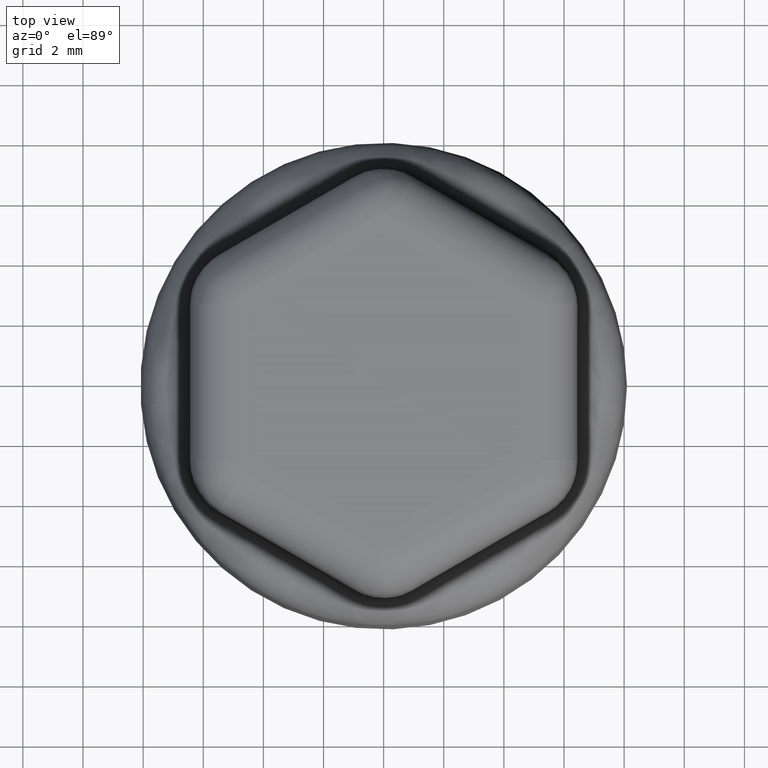
[diagram: clean part render]
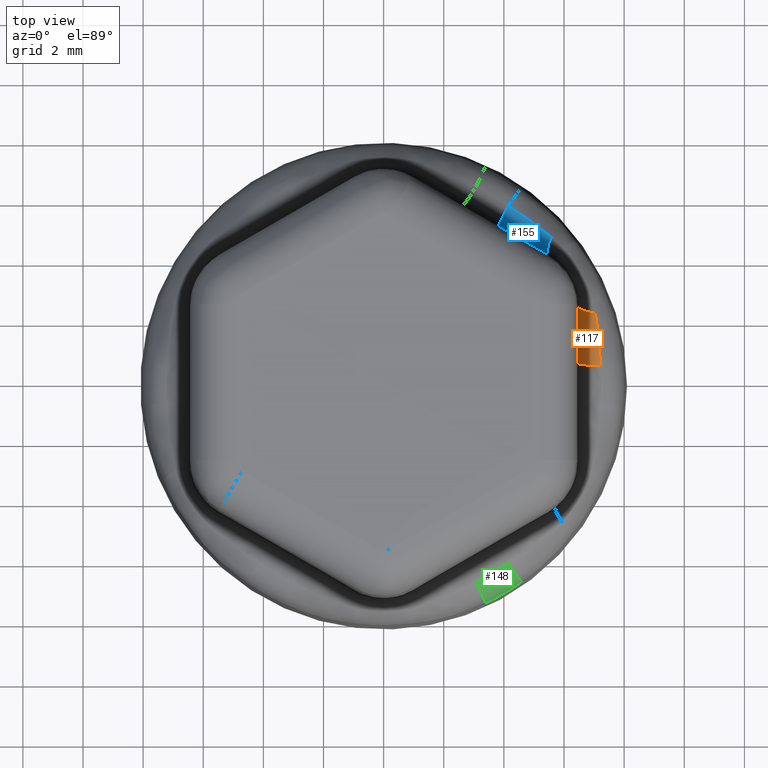
[diagram: same view with three faces highlighted in distinct colors, each labeled with its STEP entity id]
A machine part, top view with three faces highlighted in distinct colors.
Their STEP definitions:

[orange] entity #117 — the highlighted face is a freeform B-spline surface patch.
#117 = ADVANCED_FACE( '', ( #292 ), #293, .F. );
#292 = FACE_OUTER_BOUND( '', #1848, .T. );
#293 = ( B_SPLINE_SURFACE( 3, 2, ( ( #1850, #1851, #1852 ), ( #1853, #1854, #1855 ), ( #1856, #1857, #1858 ), ( #1859, #1860, #1861 ), ( #1862, #1863, #1864 ), ( #1865, #1866, #1867 ), ( #1868, #1869, #1870 ), ( #1871, #1872, #1873 ), ( #1874, #1875, #1876 ), ( #1877, #1878, #1879 ), ( #1880, #1881, #1882 ), ( #1883, #1884, #1885 ) ), .UNSPECIFIED., .F., .F., .F. )B_SPLINE_SURFACE_WITH_KNOTS( ( 4, 2, 2, 2, 2, 4 ), ( 3, 3 ), ( 0.00273812034028505, 0.00321799538146291, 0.00369787042264076, 0.00417774546381862, 0.00441768298440755, 0.00465762050499647 ), ( 0.000000000000000, 1.00000000000000 ), .UNSPECIFIED. )RATIONAL_B_SPLINE_SURFACE( ( ( 1.00000000000000, 0.868540788684804, 1.00000000000000 ), ( 1.00000000000000, 0.869626996982134, 1.00000000000000 ), ( 1.00000000000000, 0.871095905787065, 1.00000000000000 ), ( 1.00000000000000, 0.874819206004013, 1.00000000000000 ), ( 1.00000000000000, 0.877073594583361, 1.00000000000000 ), ( 1.00000000000000, 0.882396169929665, 1.00000000000000 ), ( 1.00000000000000, 0.885464692383994, 1.00000000000000 ), ( 1.00000000000000, 0.890700923210078, 1.00000000000000 ), ( 1.00000000000000, 0.892551897637465, 1.00000000000000 ), ( 1.00000000000000, 0.896467807177669, 1.00000000000000 ), ( 1.00000000000000, 0.898533363494930, 1.00000000000000 ), ( 1.00000000000000, 0.900704103057366, 1.00000000000000 ) ) )BOUNDED_SURFACE(  )REPRESENTATION_ITEM( '' )GEOMETRIC_REPRESENTATION_ITEM(  )SURFACE(  ) );
#1848 = EDGE_LOOP( '', ( #5835, #5836, #5837, #5838 ) );
#1850 = CARTESIAN_POINT( '', ( 6.45497157028330, 0.687369903874726, 4.37967701076336 ) );
#1851 = CARTESIAN_POINT( '', ( 6.46989159180715, 0.644960985334131, 3.52490955013178 ) );
#1852 = CARTESIAN_POINT( '', ( 7.21428025781307, 0.623386457222373, 3.10292781021013 ) );
#1853 = CARTESIAN_POINT( '', ( 6.45511056600844, 0.847917216718546, 4.37171395100300 ) );
#1854 = CARTESIAN_POINT( '', ( 6.46994606854181, 0.795825036931182, 3.52178858007364 ) );
#1855 = CARTESIAN_POINT( '', ( 7.20868942357169, 0.769164872809749, 3.09894631534081 ) );
#1856 = CARTESIAN_POINT( '', ( 6.45529802052555, 1.00814020784791, 4.36097468891043 ) );
#1857 = CARTESIAN_POINT( '', ( 6.47001922998623, 0.946620907635757, 3.51759716375581 ) );
#1858 = CARTESIAN_POINT( '', ( 7.20111596623594, 0.914836739092706, 3.09363153250591 ) );
#1859 = CARTESIAN_POINT( '', ( 6.45576955840183, 1.32793909275741, 4.33396030207083 ) );
#1860 = CARTESIAN_POINT( '', ( 6.47020095402935, 1.24833260808544, 3.50718620028540 ) );
#1861 = CARTESIAN_POINT( '', ( 7.18183657595185, 1.20615137132002, 3.08072530324878 ) );
#1862 = CARTESIAN_POINT( '', ( 6.45605359476077, 1.48751536574950, 4.31768786996513 ) );
#1863 = CARTESIAN_POINT( '', ( 6.47030948869475, 1.39925108482070, 3.50096825348408 ) );
#1864 = CARTESIAN_POINT( '', ( 7.17012980644683, 1.35179724620047, 3.07313298125380 ) );
#1865 = CARTESIAN_POINT( '', ( 6.45671963176135, 1.80601200213541, 4.27953063575771 ) );
#1866 = CARTESIAN_POINT( '', ( 6.47055992558435, 1.70137715564196, 3.48662073367069 ) );
#1867 = CARTESIAN_POINT( '', ( 7.14232521532970, 1.64314794227057, 3.05626565988206 ) );
#1868 = CARTESIAN_POINT( '', ( 6.45710154165786, 1.96493297310356, 4.25765103243992 ) );
#1869 = CARTESIAN_POINT( '', ( 6.47070177143394, 1.85258677509480, 3.47849439041292 ) );
#1870 = CARTESIAN_POINT( '', ( 7.12622580175267, 1.78885568546766, 3.04698957765460 ) );
#1871 = CARTESIAN_POINT( '', ( 6.45775160943407, 2.20279752541116, 4.22040867448347 ) );
#1872 = CARTESIAN_POINT( '', ( 6.47093890978424, 2.07963155802735, 3.46490874340204 ) );
#1873 = CARTESIAN_POINT( '', ( 7.09854693535384, 2.00739367866898, 3.03243529155364 ) );
#1874 = CARTESIAN_POINT( '', ( 6.45798120191919, 2.28199931731231, 4.20725532982015 ) );
#1875 = CARTESIAN_POINT( '', ( 6.47102203111101, 2.15535022082910, 3.46014672578479 ) );
#1876 = CARTESIAN_POINT( '', ( 7.08873203309258, 2.08023413592147, 3.02747913075039 ) );
#1877 = CARTESIAN_POINT( '', ( 6.45846747847817, 2.44022151221869, 4.17939656441466 ) );
#1878 = CARTESIAN_POINT( '', ( 6.47119663024470, 2.30684304767865, 3.45014394812046 ) );
#1879 = CARTESIAN_POINT( '', ( 7.06788635136021, 2.22586569227291, 3.01748557698017 ) );
#1880 = CARTESIAN_POINT( '', ( 6.45872423597085, 2.51926425761726, 4.16468693751055 ) );
#1881 = CARTESIAN_POINT( '', ( 6.47128813004794, 2.38263848574227, 3.44490192790038 ) );
#1882 = CARTESIAN_POINT( '', ( 7.05685191684469, 2.29867709526750, 3.01244686872367 ) );
#1883 = CARTESIAN_POINT( '', ( 6.45899519735940, 2.59812017812517, 4.14916356995679 ) );
#1884 = CARTESIAN_POINT( '', ( 6.47138398383981, 2.45835748737570, 3.43941046784259 ) );
#1885 = CARTESIAN_POINT( '', ( 7.04520656823759, 2.37135021411691, 3.00744526814262 ) );
#5835 = ORIENTED_EDGE( '', *, *, #6427, .F. );
#5836 = ORIENTED_EDGE( '', *, *, #6428, .F. );
#5837 = ORIENTED_EDGE( '', *, *, #6429, .F. );
#5838 = ORIENTED_EDGE( '', *, *, #6430, .F. );
#6427 = EDGE_CURVE( '', #6802, #6803, #6804, .T. );
#6428 = EDGE_CURVE( '', #6805, #6802, #6806, .T. );
#6429 = EDGE_CURVE( '', #6807, #6805, #6808, .T. );
#6430 = EDGE_CURVE( '', #6803, #6807, #6809, .T. );
#6802 = VERTEX_POINT( '', #7731 );
#6803 = VERTEX_POINT( '', #7732 );
#6804 = CIRCLE( '', #7733, 1.50000000000000 );
#6805 = VERTEX_POINT( '', #7734 );
#6806 = B_SPLINE_CURVE_WITH_KNOTS( '', 3, ( #7735, #7736, #7737, #7738, #7739, #7740, #7741, #7742, #7743, #7744 ), .UNSPECIFIED., .F., .F., ( 4, 2, 2, 2, 4 ), ( 7.40934095002374E-016, 0.000481152213710321, 0.000962304427419901, 0.00144345664112948, 0.00192460885483906 ), .UNSPECIFIED. );
#6807 = VERTEX_POINT( '', #7745 );
#6808 = CIRCLE( '', #7746, 1.50000000000000 );
#6809 = B_SPLINE_CURVE_WITH_KNOTS( '', 3, ( #7747, #7748, #7749, #7750, #7751, #7752, #7753, #7754 ), .UNSPECIFIED., .F., .F., ( 4, 2, 1, 1, 4 ), ( 3.23259564144200E-017, 0.000439678868733358, 0.000879357737466684, 0.00131903660620001, 0.00175871547493334 ), .UNSPECIFIED. );
#7731 = CARTESIAN_POINT( '', ( 6.45899519741347, 2.59812017751521, 4.14916356685927 ) );
#7732 = CARTESIAN_POINT( '', ( 7.04520656832663, 2.37135021355771, 3.00744526818155 ) );
#7733 = AXIS2_PLACEMENT_3D( '', #9568, #9569, #9570 );
#7734 = CARTESIAN_POINT( '', ( 6.45497157028332, 0.687369903874924, 4.37967701076204 ) );
#7735 = CARTESIAN_POINT( '', ( 6.45497157028350, 0.687369903874402, 4.37967701075153 ) );
#7736 = CARTESIAN_POINT( '', ( 6.45511059961678, 0.847956042404075, 4.37171202558233 ) );
#7737 = CARTESIAN_POINT( '', ( 6.45529810190633, 1.00820705914863, 4.36097002660833 ) );
#7738 = CARTESIAN_POINT( '', ( 6.45576972601721, 1.32804110552486, 4.33395069939200 ) );
#7739 = CARTESIAN_POINT( '', ( 6.45605380088855, 1.48762445974992, 4.31767606091284 ) );
#7740 = CARTESIAN_POINT( '', ( 6.45671986752397, 1.80611421167641, 4.27951712892573 ) );
#7741 = CARTESIAN_POINT( '', ( 6.45710176884905, 1.96502123463541, 4.25763801666514 ) );
#7742 = CARTESIAN_POINT( '', ( 6.45796841802829, 2.28212424258201, 4.20798771843947 ) );
#7743 = CARTESIAN_POINT( '', ( 6.45845297630457, 2.44032153823191, 4.18022739338359 ) );
#7744 = CARTESIAN_POINT( '', ( 6.45899519735731, 2.59812017751521, 4.14916357007687 ) );
#7745 = CARTESIAN_POINT( '', ( 7.21428025781279, 0.623386457222527, 3.10292781020898 ) );
#7746 = AXIS2_PLACEMENT_3D( '', #9571, #9572, #9573 );
#7747 = CARTESIAN_POINT( '', ( 7.04520656832723, 2.37135021355777, 3.00744526818112 ) );
#7748 = CARTESIAN_POINT( '', ( 7.06838967344260, 2.22667541460956, 3.01740225782362 ) );
#7749 = CARTESIAN_POINT( '', ( 7.08910464137605, 2.08176837451310, 3.02747809589073 ) );
#7750 = CARTESIAN_POINT( '', ( 7.12591758565272, 1.79146346637558, 3.04681980557704 ) );
#7751 = CARTESIAN_POINT( '', ( 7.15811576007762, 1.50066790417674, 3.06535079793769 ) );
#7752 = CARTESIAN_POINT( '', ( 7.19339696856893, 1.06294618122128, 3.08821570308401 ) );
#7753 = CARTESIAN_POINT( '', ( 7.20865415344194, 0.770084515561094, 3.09892119829798 ) );
#7754 = CARTESIAN_POINT( '', ( 7.21428025781281, 0.623386457222530, 3.10292781020899 ) );
#9568 = CARTESIAN_POINT( '', ( 7.95876674009189, 2.59812017751521, 4.17534217973279 ) );
#9569 = DIRECTION( '', ( -0.00337143309674195, -0.981163590780797, 0.193149272752984 ) );
#9570 = DIRECTION( '', ( 0.000000000000000, -0.193150370483850, -0.981169167056299 ) );
#9571 = CARTESIAN_POINT( '', ( 7.95474311301790, 0.687369903874924, 4.40585562041797 ) );
#9572 = DIRECTION( '', ( 0.000864698435826482, 0.998771838474839, -0.0495385402106828 ) );
#9573 = DIRECTION( '', ( 6.00005070507450E-021, 0.0495385587307603, 0.998772211867590 ) );

[blue] entity #155 — the highlighted face is a freeform B-spline surface patch.
#155 = ADVANCED_FACE( '', ( #369 ), #370, .F. );
#369 = FACE_OUTER_BOUND( '', #3350, .T. );
#370 = ( B_SPLINE_SURFACE( 3, 2, ( ( #3352, #3353, #3354 ), ( #3355, #3356, #3357 ), ( #3358, #3359, #3360 ), ( #3361, #3362, #3363 ), ( #3364, #3365, #3366 ), ( #3367, #3368, #3369 ), ( #3370, #3371, #3372 ), ( #3373, #3374, #3375 ), ( #3376, #3377, #3378 ), ( #3379, #3380, #3381 ) ), .UNSPECIFIED., .F., .F., .F. )B_SPLINE_SURFACE_WITH_KNOTS( ( 4, 2, 2, 2, 4 ), ( 3, 3 ), ( 0.000986341191622187, 0.00146706434295061, 0.00194778749427903, 0.00242851064560745, 0.00290923379693586 ), ( 0.000000000000000, 1.00000000000000 ), .UNSPECIFIED. )RATIONAL_B_SPLINE_SURFACE( ( ( 1.00000000000000, 0.900704103491396, 1.00000000000000 ), ( 1.00000000000000, 0.896373553587762, 1.00000000000000 ), ( 1.00000000000000, 0.892468104005002, 1.00000000000000 ), ( 1.00000000000000, 0.885493871786032, 1.00000000000000 ), ( 1.00000000000000, 0.882424757846410, 1.00000000000000 ), ( 1.00000000000000, 0.877096849968697, 1.00000000000000 ), ( 1.00000000000000, 0.874837706195416, 1.00000000000000 ), ( 1.00000000000000, 0.871104541352599, 1.00000000000000 ), ( 1.00000000000000, 0.869630510380405, 1.00000000000000 ), ( 1.00000000000000, 0.868540788684860, 1.00000000000000 ) ) )BOUNDED_SURFACE(  )REPRESENTATION_ITEM( '' )GEOMETRIC_REPRESENTATION_ITEM(  )SURFACE(  ) );
#3350 = EDGE_LOOP( '', ( #6061, #6062, #6063, #6064 ) );
#3352 = CARTESIAN_POINT( '', ( 5.47953568869709, 4.29459382693901, 4.14916356685422 ) );
#3353 = CARTESIAN_POINT( '', ( 5.36469204068807, 4.37520417641010, 3.43941046674551 ) );
#3354 = CARTESIAN_POINT( '', ( 5.57625282223069, 4.91565274666395, 3.00744526714323 ) );
#3355 = CARTESIAN_POINT( '', ( 5.34303672691717, 4.37277740150328, 4.18012988871262 ) );
#3356 = CARTESIAN_POINT( '', ( 5.23378316608867, 4.45056365249872, 3.45036525791938 ) );
#3357 = CARTESIAN_POINT( '', ( 5.46231541421540, 5.00825986037708, 3.01742300424325 ) );
#3358 = CARTESIAN_POINT( '', ( 5.20610377723092, 4.45127717110707, 4.20783990738098 ) );
#3359 = CARTESIAN_POINT( '', ( 5.10280628563240, 4.52598245780045, 3.46032448261211 ) );
#3360 = CARTESIAN_POINT( '', ( 5.34685530863998, 5.09890044086640, 3.02752704317413 ) );
#3361 = CARTESIAN_POINT( '', ( 4.93146417849048, 4.60884064242420, 4.25744330356900 ) );
#3362 = CARTESIAN_POINT( '', ( 4.84091055549304, 4.67682334820238, 3.47841791585920 ) );
#3363 = CARTESIAN_POINT( '', ( 5.11335912781871, 5.27628008352409, 3.04690480712069 ) );
#3364 = CARTESIAN_POINT( '', ( 4.79375588573686, 4.68790550069344, 4.27932638281288 ) );
#3365 = CARTESIAN_POINT( '', ( 4.70999204894822, 4.75224538709284, 3.48654458789596 ) );
#3366 = CARTESIAN_POINT( '', ( 4.99532502617398, 5.36302153833711, 3.05617805657623 ) );
#3367 = CARTESIAN_POINT( '', ( 4.51759760913325, 4.84657574000138, 4.31752046798605 ) );
#3368 = CARTESIAN_POINT( '', ( 4.44821397424254, 4.90309359639536, 3.50090465945940 ) );
#3369 = CARTESIAN_POINT( '', ( 4.75692210412644, 5.53280274895616, 3.07305632132490 ) );
#3370 = CARTESIAN_POINT( '', ( 4.37914695913191, 4.92618160651171, 4.33382646934619 ) );
#3371 = CARTESIAN_POINT( '', ( 4.31735255425386, 4.97852089984134, 3.50713488957060 ) );
#3372 = CARTESIAN_POINT( '', ( 4.63655149616233, 5.61584549318348, 3.08066231049905 ) );
#3373 = CARTESIAN_POINT( '', ( 4.10150999018609, 5.08592947353275, 4.36091164114288 ) );
#3374 = CARTESIAN_POINT( '', ( 4.05554703645441, 5.12946401004368, 3.51757260143635 ) );
#3375 = CARTESIAN_POINT( '', ( 4.39352184427125, 5.77848002847180, 3.09360047168013 ) );
#3376 = CARTESIAN_POINT( '', ( 3.96232322521388, 5.16607178444426, 4.37168818763645 ) );
#3377 = CARTESIAN_POINT( '', ( 3.92460051386811, 5.20498124897048, 3.52177848432888 ) );
#3378 = CARTESIAN_POINT( '', ( 4.27086043826735, 5.85807424794282, 3.09893343416638 ) );
#3379 = CARTESIAN_POINT( '', ( 3.82276558369412, 5.24648440863428, 4.37967701076204 ) );
#3380 = CARTESIAN_POINT( '', ( 3.79349839365285, 5.28060998556924, 3.52490955013069 ) );
#3381 = CARTESIAN_POINT( '', ( 4.14700863723621, 5.93605674467522, 3.10292781020899 ) );
#6061 = ORIENTED_EDGE( '', *, *, #6558, .T. );
#6062 = ORIENTED_EDGE( '', *, *, #6559, .F. );
#6063 = ORIENTED_EDGE( '', *, *, #6551, .F. );
#6064 = ORIENTED_EDGE( '', *, *, #6548, .F. );
#6548 = EDGE_CURVE( '', #7011, #7013, #7014, .T. );
#6551 = EDGE_CURVE( '', #7013, #7017, #7018, .T. );
#6558 = EDGE_CURVE( '', #7011, #7027, #7028, .T. );
#6559 = EDGE_CURVE( '', #7017, #7027, #7029, .T. );
#7011 = VERTEX_POINT( '', #8878 );
#7013 = VERTEX_POINT( '', #8881 );
#7014 = B_SPLINE_CURVE_WITH_KNOTS( '', 3, ( #8882, #8883, #8884, #8885, #8886, #8887, #8888, #8889, #8890, #8891 ), .UNSPECIFIED., .F., .F., ( 4, 2, 2, 2, 4 ), ( 0.000000000000000, 0.000481152213826693, 0.000962304427653385, 0.00144345664148008, 0.00192460885530677 ), .UNSPECIFIED. );
#7017 = VERTEX_POINT( '', #8901 );
#7018 = CIRCLE( '', #8902, 1.50000000000000 );
#7027 = VERTEX_POINT( '', #8933 );
#7028 = CIRCLE( '', #8934, 1.50000000000000 );
#7029 = B_SPLINE_CURVE_WITH_KNOTS( '', 3, ( #8935, #8936, #8937, #8938, #8939, #8940, #8941, #8942 ), .UNSPECIFIED., .F., .F., ( 4, 1, 1, 2, 4 ), ( 0.000000000000000, 0.000439678868840558, 0.000879357737681117, 0.00131903660652168, 0.00175871547536223 ), .UNSPECIFIED. );
#8878 = CARTESIAN_POINT( '', ( 5.47953567489035, 4.29459383484720, 4.14916356998644 ) );
#8881 = CARTESIAN_POINT( '', ( 3.82276558369412, 5.24648440863428, 4.37967701076204 ) );
#8882 = CARTESIAN_POINT( '', ( 5.47953567489035, 4.29459383484721, 4.14916356998644 ) );
#8883 = CARTESIAN_POINT( '', ( 5.34260693402956, 4.37302357730118, 4.18022739330713 ) );
#8884 = CARTESIAN_POINT( '', ( 5.20536177801587, 4.45170258536792, 4.20798771837490 ) );
#8885 = CARTESIAN_POINT( '', ( 4.93030919286214, 4.60950354917346, 4.25763801662124 ) );
#8886 = CARTESIAN_POINT( '', ( 4.79250072344419, 4.68862632442267, 4.27951712889058 ) );
#8887 = CARTESIAN_POINT( '', ( 4.51634747404643, 4.84729436979724, 4.31767606089244 ) );
#8888 = CARTESIAN_POINT( '', ( 4.37800219779719, 4.92684003087386, 4.33395069937758 ) );
#8889 = CARTESIAN_POINT( '', ( 4.10078197651732, 5.08634861563967, 4.36097002660318 ) );
#8890 = CARTESIAN_POINT( '', ( 3.96190677385721, 5.16631174228428, 4.37171202559093 ) );
#8891 = CARTESIAN_POINT( '', ( 3.82276558369412, 5.24648440863428, 4.37967701076204 ) );
#8901 = CARTESIAN_POINT( '', ( 4.14700863723620, 5.93605674467521, 3.10292781020899 ) );
#8902 = AXIS2_PLACEMENT_3D( '', #9708, #9709, #9710 );
#8933 = CARTESIAN_POINT( '', ( 5.57625281070661, 4.91565275603055, 3.00744526815245 ) );
#8934 = AXIS2_PLACEMENT_3D( '', #9720, #9721, #9722 );
#8935 = CARTESIAN_POINT( '', ( 4.14700863723621, 5.93605674467521, 3.10292781020899 ) );
#8936 = CARTESIAN_POINT( '', ( 4.27123983028824, 5.85783536617726, 3.09892119829699 ) );
#8937 = CARTESIAN_POINT( '', ( 4.51723704851185, 5.69819164993936, 3.08821580430012 ) );
#8938 = CARTESIAN_POINT( '', ( 4.87867469504259, 5.44877651085101, 3.06535112514941 ) );
#8939 = CARTESIAN_POINT( '', ( 5.11441166488890, 5.27549392109160, 3.04681980555873 ) );
#8940 = CARTESIAN_POINT( '', ( 5.34741661809367, 5.09846052204254, 3.02747809586655 ) );
#8941 = CARTESIAN_POINT( '', ( 5.46255231206300, 5.00806731349956, 3.01740225779705 ) );
#8942 = CARTESIAN_POINT( '', ( 5.57625281070668, 4.91565275603055, 3.00744526815241 ) );
#9708 = CARTESIAN_POINT( '', ( 4.57265135506141, 6.54532466451541, 4.40585562041797 ) );
#9709 = DIRECTION( '', ( 0.865394133921612, -0.498637068425381, -0.0495385402106736 ) );
#9710 = DIRECTION( '', ( 0.499250041242520, 0.866457959926125, 0.000000000000000 ) );
#9720 = CARTESIAN_POINT( '', ( 6.22942146011107, 5.59343408283380, 4.17534217671600 ) );
#9721 = DIRECTION( '', ( 0.851398305083271, -0.487662057743106, -0.193149277863245 ) );
#9722 = DIRECTION( '', ( 0.497021275446307, 0.867738354432790, 0.000000000000000 ) );

[green] entity #148 — the highlighted toroidal blend (fillet) surface has major radius 6.4979 mm and minor (blend) radius 1.5 mm.
#148 = ADVANCED_FACE( '', ( #355 ), #356, .T. );
#355 = FACE_OUTER_BOUND( '', #3162, .T. );
#356 = TOROIDAL_SURFACE( '', #3163, 6.49794148100310, 1.50000000000000 );
#3162 = EDGE_LOOP( '', ( #6021, #6022, #6023, #6024 ) );
#3163 = AXIS2_PLACEMENT_3D( '', #6025, #6026, #6027 );
#6021 = ORIENTED_EDGE( '', *, *, #6544, .F. );
#6022 = ORIENTED_EDGE( '', *, *, #6539, .T. );
#6023 = ORIENTED_EDGE( '', *, *, #6527, .T. );
#6024 = ORIENTED_EDGE( '', *, *, #6482, .F. );
#6025 = CARTESIAN_POINT( '', ( 1.21430643318377E-014, 0.000000000000000, 1.80000000000000 ) );
#6026 = DIRECTION( '', ( 0.000000000000000, 0.000000000000000, 1.00000000000000 ) );
#6027 = DIRECTION( '', ( 1.00000000000000, 0.000000000000000, 0.000000000000000 ) );
#6482 = EDGE_CURVE( '', #6902, #6904, #6905, .T. );
#6527 = EDGE_CURVE( '', #6980, #6904, #6981, .F. );
#6539 = EDGE_CURVE( '', #6997, #6980, #6999, .T. );
#6544 = EDGE_CURVE( '', #6997, #6902, #7006, .T. );
#6902 = VERTEX_POINT( '', #8301 );
#6904 = VERTEX_POINT( '', #8318 );
#6905 = CIRCLE( '', #8319, 7.99588578313496 );
#6980 = VERTEX_POINT( '', #8780 );
#6981 = CIRCLE( '', #8781, 1.50000000000000 );
#6997 = VERTEX_POINT( '', #8835 );
#6999 = B_SPLINE_CURVE_WITH_KNOTS( '', 3, ( #8837, #8838, #8839, #8840, #8841, #8842, #8843 ), .UNSPECIFIED., .F., .F., ( 4, 1, 1, 1, 4 ), ( 1.22663473334670E-018, 0.000311693228611223, 0.000623386457222444, 0.000935079685833665, 0.00124677291444489 ), .UNSPECIFIED. );
#7006 = CIRCLE( '', #8866, 1.50000000000000 );
#8301 = CARTESIAN_POINT( '', ( 4.57923743016965, -6.55475201781677, 1.87850393436442 ) );
#8318 = CARTESIAN_POINT( '', ( 3.38696304785182, -7.24311195339587, 1.87850393436442 ) );
#8319 = AXIS2_PLACEMENT_3D( '', #9622, #9623, #9624 );
#8780 = CARTESIAN_POINT( '', ( 3.06727162057659, -6.55944320189764, 3.10292781020899 ) );
#8781 = AXIS2_PLACEMENT_3D( '', #9677, #9678, #9679 );
#8835 = CARTESIAN_POINT( '', ( 4.14700863723622, -5.93605674467520, 3.10292781020898 ) );
#8837 = CARTESIAN_POINT( '', ( 4.14700863723622, -5.93605674467520, 3.10292781020898 ) );
#8838 = CARTESIAN_POINT( '', ( 4.05901141864664, -5.99143657689411, 3.10577848242222 ) );
#8839 = CARTESIAN_POINT( '', ( 3.88203586305449, -6.10049689439242, 3.10997480487827 ) );
#8840 = CARTESIAN_POINT( '', ( 3.61359562418139, -6.25893121909073, 3.11204190318803 ) );
#8841 = CARTESIAN_POINT( '', ( 3.34216735472468, -6.41219012300365, 3.10997480487827 ) );
#8842 = CARTESIAN_POINT( '', ( 3.15923057143027, -6.51092529124615, 3.10577848242222 ) );
#8843 = CARTESIAN_POINT( '', ( 3.06727162057658, -6.55944320189764, 3.10292781020898 ) );
#8866 = AXIS2_PLACEMENT_3D( '', #9700, #9701, #9702 );
#9622 = CARTESIAN_POINT( '', ( 1.21430643318377E-014, 0.000000000000000, 1.87850393436442 ) );
#9623 = DIRECTION( '', ( 0.000000000000000, 0.000000000000000, -1.00000000000000 ) );
#9624 = DIRECTION( '', ( -1.00000000000000, 0.000000000000000, 0.000000000000000 ) );
#9677 = CARTESIAN_POINT( '', ( 2.75245148319669, -5.88619183540507, 1.80000000000000 ) );
#9678 = DIRECTION( '', ( -0.905854854589487, -0.423588222707689, -7.01472469721856E-016 ) );
#9679 = DIRECTION( '', ( 0.423588222707689, -0.905854854589487, 0.000000000000000 ) );
#9700 = CARTESIAN_POINT( '', ( 3.72136591941101, -5.32678882483500, 1.80000000000000 ) );
#9701 = DIRECTION( '', ( 0.819765588903503, 0.572699204862110, 0.000000000000000 ) );
#9702 = DIRECTION( '', ( -0.572699204862110, 0.819765588903503, 0.000000000000000 ) );